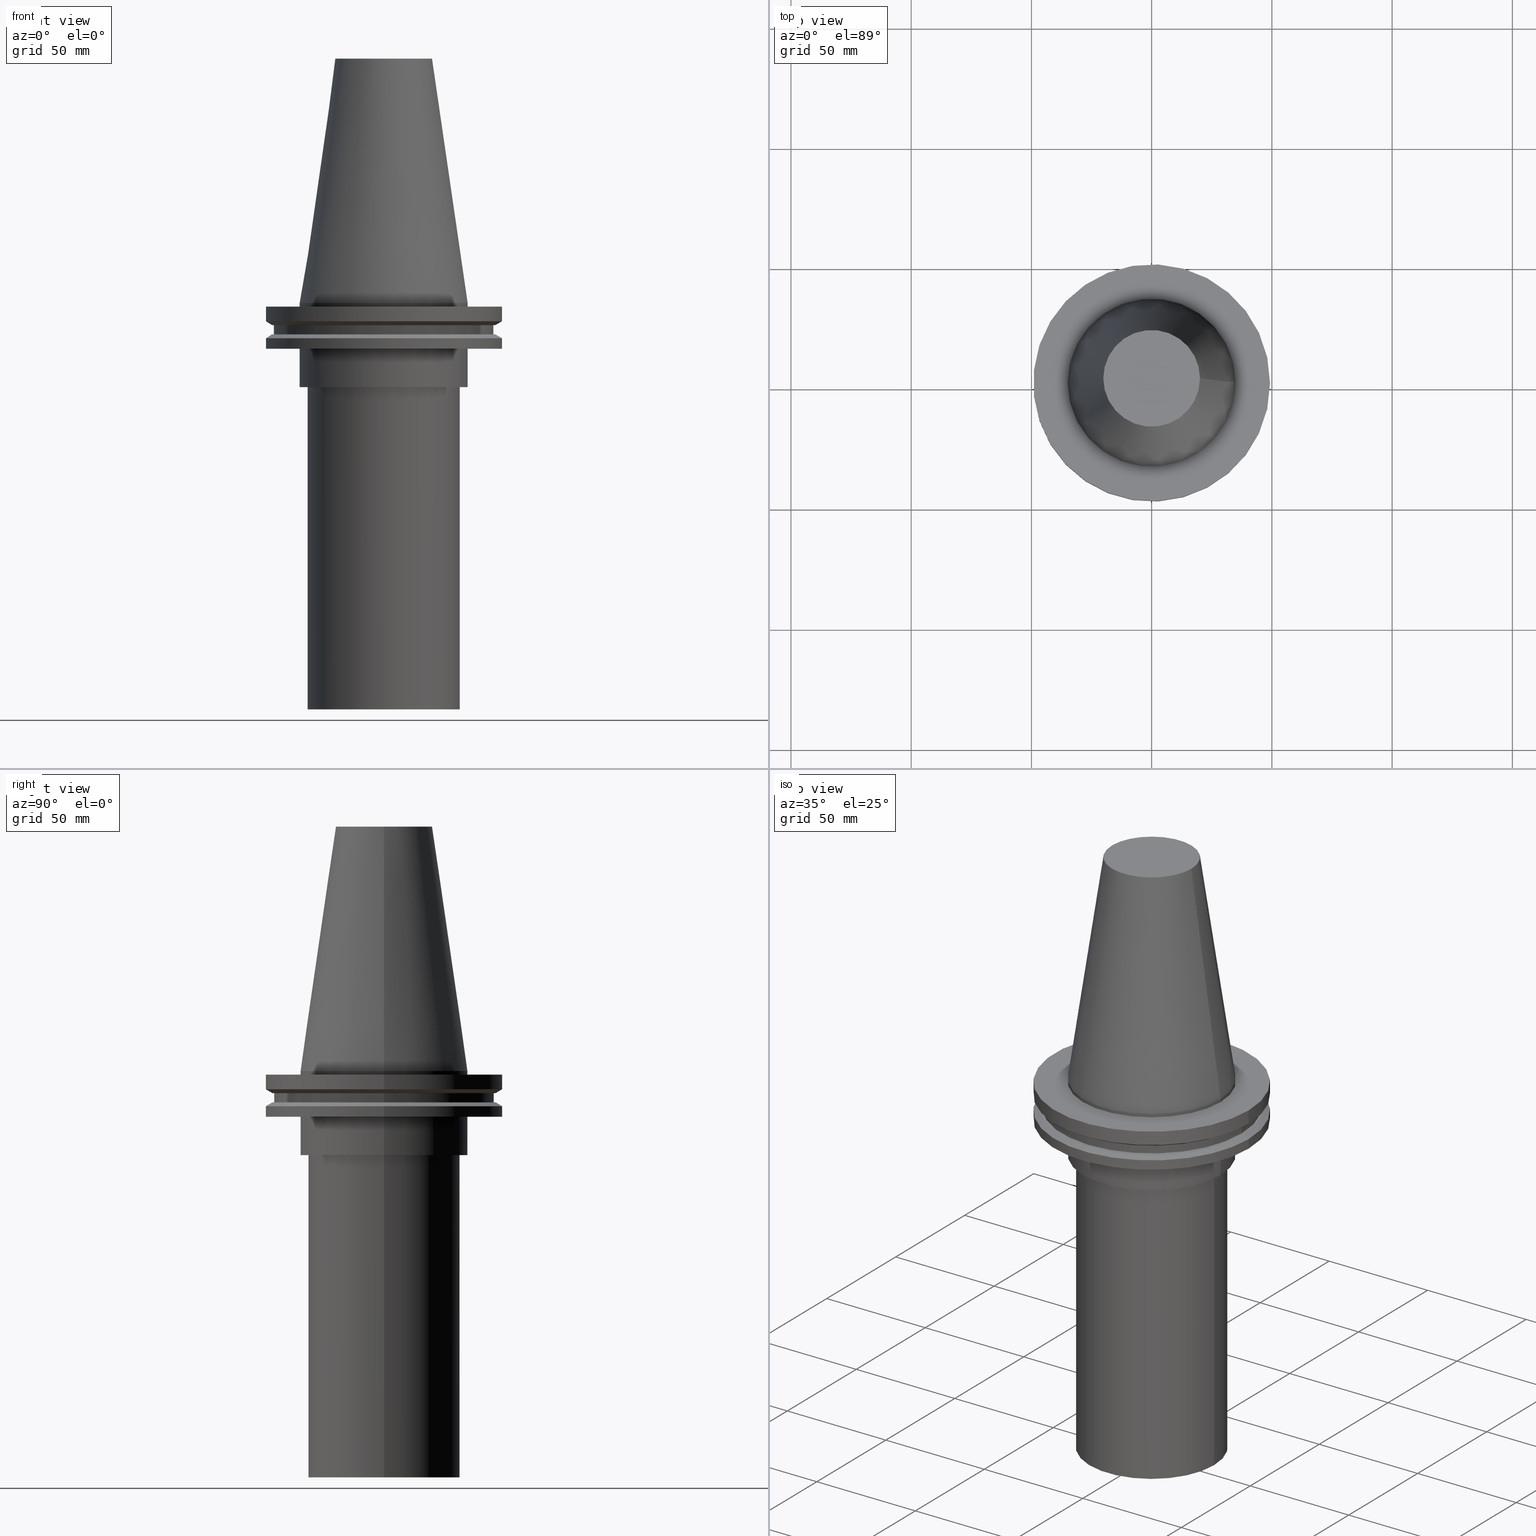
[diagram: canonical four-view strip — front | top / right | iso, engineering-drawing reading convention]
A machine part, canonical four-view strip (front | top / right | iso — engineering-drawing reading convention). The complete STEP part file that produces these views, byte-faithful:
ISO-10303-21;
HEADER;
FILE_DESCRIPTION (( 'STEP AP203' ),
    '1' );
FILE_NAME ('11.326.665.stp',
    '2022-03-09T14:53:39',
    ( '' ),
    ( '' ),
    'SwSTEP 2.0',
    'SolidWorks 2021',
    '' );
FILE_SCHEMA (( 'CONFIG_CONTROL_DESIGN' ));
ENDSEC;

DATA;
#1 = CARTESIAN_POINT ( 'NONE',  ( 34.92499999999999716, 0.000000000000000000, -19.04999999999999716 ) ) ;
#2 = EDGE_CURVE ( 'NONE', #276, #276, #79, .T. ) ;
#3 = VERTEX_POINT ( 'NONE', #122 ) ;
#4 = DIRECTION ( 'NONE',  ( 0.000000000000000000, 0.000000000000000000, -1.000000000000000000 ) ) ;
#5 = CARTESIAN_POINT ( 'NONE',  ( 0.000000000000000000, 0.000000000000000000, -168.9999999999999432 ) ) ;
#6 = LOCAL_TIME ( 8, 53, 39.00000000000000000, #308 ) ;
#7 = AXIS2_PLACEMENT_3D ( 'NONE', #236, #206, #326 ) ;
#8 = VERTEX_POINT ( 'NONE', #126 ) ;
#9 = CALENDAR_DATE ( 2022, 9, 3 ) ;
#10 = AXIS2_PLACEMENT_3D ( 'NONE', #107, #386, #356 ) ;
#11 = MECHANICAL_CONTEXT ( 'NONE', #37, 'mechanical' ) ;
#12 = ORIENTED_EDGE ( 'NONE', *, *, #245, .F. ) ;
#13 = PRODUCT_DEFINITION_SHAPE ( 'NONE', 'NONE',  #361 ) ;
#14 = AXIS2_PLACEMENT_3D ( 'NONE', #367, #85, #250 ) ;
#15 = CC_DESIGN_PERSON_AND_ORGANIZATION_ASSIGNMENT ( #195, #389, ( #288 ) ) ;
#16 = PLANE ( 'NONE',  #90 ) ;
#17 = EDGE_LOOP ( 'NONE', ( #110 ) ) ;
#18 = EDGE_LOOP ( 'NONE', ( #329 ) ) ;
#19 = ORIENTED_EDGE ( 'NONE', *, *, #199, .T. ) ;
#20 = APPROVAL_PERSON_ORGANIZATION ( #223, #222, #194 ) ;
#21 = EDGE_LOOP ( 'NONE', ( #319 ) ) ;
#22 = DATE_AND_TIME ( #50, #83 ) ;
#23 = CARTESIAN_POINT ( 'NONE',  ( 0.000000000000000000, 0.000000000000000000, -19.04999999999999716 ) ) ;
#24 = DIRECTION ( 'NONE',  ( 1.000000000000000000, 0.000000000000000000, 0.000000000000000000 ) ) ;
#25 = FACE_OUTER_BOUND ( 'NONE', #196, .T. ) ;
#26 = APPROVAL_STATUS ( 'not_yet_approved' ) ;
#27 = FACE_OUTER_BOUND ( 'NONE', #229, .T. ) ;
#28 = FACE_OUTER_BOUND ( 'NONE', #147, .T. ) ;
#29 = CIRCLE ( 'NONE', #330, 46.43919780457007818 ) ;
#30 = AXIS2_PLACEMENT_3D ( 'NONE', #247, #299, #274 ) ;
#31 = DIRECTION ( 'NONE',  ( 1.000000000000000000, 0.000000000000000000, 0.000000000000000000 ) ) ;
#32 = EDGE_CURVE ( 'NONE', #121, #121, #102, .T. ) ;
#33 = FACE_OUTER_BOUND ( 'NONE', #82, .T. ) ;
#34 = AXIS2_PLACEMENT_3D ( 'NONE', #322, #290, #320 ) ;
#35 = CARTESIAN_POINT ( 'NONE',  ( 0.000000000000000000, 0.000000000000000000, -14.65761014474876944 ) ) ;
#36 = PERSON_AND_ORGANIZATION ( #134, #162 ) ;
#37 = APPLICATION_CONTEXT ( 'configuration controlled 3d designs of mechanical parts and assemblies' ) ;
#38 = AXIS2_PLACEMENT_3D ( 'NONE', #23, #89, #279 ) ;
#39 = APPROVAL_DATE_TIME ( #192, #252 ) ;
#40 = DIRECTION ( 'NONE',  ( 0.000000000000000000, 0.000000000000000000, 1.000000000000000000 ) ) ;
#41 = DIRECTION ( 'NONE',  ( 1.000000000000000000, 0.000000000000000000, 0.000000000000000000 ) ) ;
#42 = ORIENTED_EDGE ( 'NONE', *, *, #277, .F. ) ;
#43 = DIRECTION ( 'NONE',  ( 0.000000000000000000, -0.000000000000000000, 1.000000000000000000 ) ) ;
#44 = ORIENTED_EDGE ( 'NONE', *, *, #99, .T. ) ;
#45 = DIRECTION ( 'NONE',  ( -0.000000000000000000, -0.000000000000000000, 1.000000000000000000 ) ) ;
#46 = CARTESIAN_POINT ( 'NONE',  ( 0.000000000000000000, 0.000000000000000000, 0.000000000000000000 ) ) ;
#47 = PLANE ( 'NONE',  #211 ) ;
#48 = ADVANCED_FACE ( 'NONE', ( #51, #181 ), #152, .T. ) ;
#49 = DIRECTION ( 'NONE',  ( 1.000000000000000000, 0.000000000000000000, 0.000000000000000000 ) ) ;
#50 = CALENDAR_DATE ( 2022, 9, 3 ) ;
#51 = FACE_OUTER_BOUND ( 'NONE', #383, .T. ) ;
#52 = PLANE ( 'NONE',  #306 ) ;
#53 = DIRECTION ( 'NONE',  ( -0.000000000000000000, -0.000000000000000000, 1.000000000000000000 ) ) ;
#54 = EDGE_CURVE ( 'NONE', #159, #159, #373, .T. ) ;
#55 = CARTESIAN_POINT ( 'NONE',  ( 49.21499999999998920, 0.000000000000000000, -14.65761014474876944 ) ) ;
#56 = AXIS2_PLACEMENT_3D ( 'NONE', #289, #321, #111 ) ;
#57 = FACE_BOUND ( 'NONE', #292, .T. ) ;
#58 = DIRECTION ( 'NONE',  ( 1.000000000000000000, 0.000000000000000000, 0.000000000000000000 ) ) ;
#59 = LOCAL_TIME ( 8, 53, 39.00000000000000000, #343 ) ;
#60 = ADVANCED_FACE ( 'NONE', ( #327, #179 ), #94, .T. ) ;
#61 = CALENDAR_DATE ( 2022, 9, 3 ) ;
#62 = CARTESIAN_POINT ( 'NONE',  ( 0.000000000000000000, 0.000000000000000000, -1.499999999999987566 ) ) ;
#63 = ADVANCED_FACE ( 'NONE', ( #303, #28 ), #238, .T. ) ;
#64 = CARTESIAN_POINT ( 'NONE',  ( 46.43919780457007818, 0.000000000000000000, -9.204999999999991189 ) ) ;
#65 = DIRECTION ( 'NONE',  ( -0.000000000000000000, -0.000000000000000000, 1.000000000000000000 ) ) ;
#66 = LOCAL_TIME ( 8, 53, 39.00000000000000000, #272 ) ;
#67 = DATE_AND_TIME ( #246, #118 ) ;
#68 = DIRECTION ( 'NONE',  ( -1.000000000000000000, 0.000000000000000000, -0.000000000000000000 ) ) ;
#69 = EDGE_LOOP ( 'NONE', ( #345 ) ) ;
#70 = APPLICATION_CONTEXT ( 'configuration controlled 3d designs of mechanical parts and assemblies' ) ;
#71 = DIRECTION ( 'NONE',  ( 1.000000000000000000, 0.000000000000000000, 0.000000000000000000 ) ) ;
#72 = EDGE_LOOP ( 'NONE', ( #316 ) ) ;
#73 = DIRECTION ( 'NONE',  ( 0.000000000000000000, 0.000000000000000000, -1.000000000000000000 ) ) ;
#74 = ORIENTED_EDGE ( 'NONE', *, *, #248, .F. ) ;
#75 = ADVANCED_BREP_SHAPE_REPRESENTATION ( '11.326.665', ( #387, #88 ), #137 ) ;
#76 = AXIS2_PLACEMENT_3D ( 'NONE', #183, #336, #390 ) ;
#77 = CYLINDRICAL_SURFACE ( 'NONE', #7, 45.64500000000000313 ) ;
#78 = EDGE_LOOP ( 'NONE', ( #357 ) ) ;
#79 = CIRCLE ( 'NONE', #34, 34.92499999999999716 ) ;
#80 = ADVANCED_FACE ( 'NONE', ( #216, #87 ), #280, .T. ) ;
#81 = FACE_OUTER_BOUND ( 'NONE', #205, .T. ) ;
#82 = EDGE_LOOP ( 'NONE', ( #164 ) ) ;
#83 = LOCAL_TIME ( 8, 53, 39.00000000000000000, #295 ) ;
#84 = CYLINDRICAL_SURFACE ( 'NONE', #264, 49.21499999999999631 ) ;
#85 = DIRECTION ( 'NONE',  ( 0.000000000000000000, 0.000000000000000000, -1.000000000000000000 ) ) ;
#86 = FACE_OUTER_BOUND ( 'NONE', #116, .T. ) ;
#87 = FACE_OUTER_BOUND ( 'NONE', #220, .T. ) ;
#88 = AXIS2_PLACEMENT_3D ( 'NONE', #165, #40, #338 ) ;
#89 = DIRECTION ( 'NONE',  ( -0.000000000000000000, -0.000000000000000000, 1.000000000000000000 ) ) ;
#90 = AXIS2_PLACEMENT_3D ( 'NONE', #139, #43, #173 ) ;
#91 = DIRECTION ( 'NONE',  ( 1.000000000000000000, 0.000000000000000000, 0.000000000000000000 ) ) ;
#92 = CARTESIAN_POINT ( 'NONE',  ( 0.000000000000000000, 0.000000000000000000, 101.5999999999999943 ) ) ;
#93 = CC_DESIGN_PERSON_AND_ORGANIZATION_ASSIGNMENT ( #131, #255, ( #231 ) ) ;
#94 = CONICAL_SURFACE ( 'NONE', #184, 34.92499999999999005, 0.1448138465474119452 ) ;
#95 = CARTESIAN_POINT ( 'NONE',  ( 49.21499999999998920, 0.000000000000000000, -19.04999999999999716 ) ) ;
#96 = VERTEX_POINT ( 'NONE', #282 ) ;
#97 = ORIENTED_EDGE ( 'NONE', *, *, #161, .T. ) ;
#98 = CARTESIAN_POINT ( 'NONE',  ( 49.21499999999999631, 0.000000000000000000, -1.499999999999987566 ) ) ;
#99 = EDGE_CURVE ( 'NONE', #3, #3, #244, .T. ) ;
#100 = EDGE_CURVE ( 'NONE', #249, #249, #260, .T. ) ;
#101 = DATE_TIME_ROLE ( 'creation_date' ) ;
#102 = CIRCLE ( 'NONE', #269, 49.21499999999998920 ) ;
#103 = ORIENTED_EDGE ( 'NONE', *, *, #199, .F. ) ;
#104 = VERTEX_POINT ( 'NONE', #219 ) ;
#105 = CC_DESIGN_APPROVAL ( #222, ( #288 ) ) ;
#106 = AXIS2_PLACEMENT_3D ( 'NONE', #92, #286, #41 ) ;
#107 = CARTESIAN_POINT ( 'NONE',  ( 0.000000000000000000, 0.000000000000000000, 101.5999999999999943 ) ) ;
#108 = CARTESIAN_POINT ( 'NONE',  ( 0.000000000000000000, 0.000000000000000000, -9.204999999999991189 ) ) ;
#109 = ORIENTED_EDGE ( 'NONE', *, *, #161, .F. ) ;
#110 = ORIENTED_EDGE ( 'NONE', *, *, #369, .F. ) ;
#111 = DIRECTION ( 'NONE',  ( 1.000000000000000000, 0.000000000000000000, 0.000000000000000000 ) ) ;
#112 = CARTESIAN_POINT ( 'NONE',  ( 0.000000000000000000, 0.000000000000000000, -13.05499999999999794 ) ) ;
#113 = EDGE_LOOP ( 'NONE', ( #109 ) ) ;
#114 = CALENDAR_DATE ( 2022, 9, 3 ) ;
#115 = DIRECTION ( 'NONE',  ( 0.000000000000000000, -0.000000000000000000, 1.000000000000000000 ) ) ;
#116 = EDGE_LOOP ( 'NONE', ( #350 ) ) ;
#117 = SHAPE_DEFINITION_REPRESENTATION ( #13, #75 ) ;
#118 = LOCAL_TIME ( 8, 53, 39.00000000000000000, #209 ) ;
#119 = PLANE ( 'NONE',  #14 ) ;
#120 = DATE_AND_TIME ( #114, #66 ) ;
#121 = VERTEX_POINT ( 'NONE', #55 ) ;
#122 = CARTESIAN_POINT ( 'NONE',  ( 34.92499999999999005, 0.000000000000000000, -1.499999999999987566 ) ) ;
#123 = CC_DESIGN_SECURITY_CLASSIFICATION ( #339, ( #288 ) ) ;
#124 = DIRECTION ( 'NONE',  ( 1.000000000000000000, 0.000000000000000000, 0.000000000000000000 ) ) ;
#125 = CIRCLE ( 'NONE', #230, 45.64500000000000313 ) ;
#126 = CARTESIAN_POINT ( 'NONE',  ( 49.21500000000000341, 0.000000000000000000, -7.602389855251287187 ) ) ;
#127 = CARTESIAN_POINT ( 'NONE',  ( 0.000000000000000000, 0.000000000000000000, -9.204999999999991189 ) ) ;
#128 = CARTESIAN_POINT ( 'NONE',  ( 34.92499999999999716, 0.000000000000000000, -35.00000000000000000 ) ) ;
#129 = EDGE_CURVE ( 'NONE', #281, #281, #29, .T. ) ;
#130 = EDGE_LOOP ( 'NONE', ( #348 ) ) ;
#131 = PERSON_AND_ORGANIZATION ( #134, #162 ) ;
#132 = ADVANCED_FACE ( 'NONE', ( #145 ), #149, .F. ) ;
#133 = DATE_AND_TIME ( #9, #6 ) ;
#134 = PERSON ( 'UNSPECIFIED', 'UNSPECIFIED', 'UNSPECIFIED', ('UNSPECIFIED'), ('UNSPECIFIED'), ('UNSPECIFIED') ) ;
#135 = CARTESIAN_POINT ( 'NONE',  ( 20.10819343178871321, 0.000000000000000000, 101.5999999999999801 ) ) ;
#136 = CARTESIAN_POINT ( 'NONE',  ( 0.000000000000000000, 20.10819343178871321, 101.5999999999999943 ) ) ;
#137 =( GEOMETRIC_REPRESENTATION_CONTEXT ( 3 ) GLOBAL_UNCERTAINTY_ASSIGNED_CONTEXT ( ( #158 ) ) GLOBAL_UNIT_ASSIGNED_CONTEXT ( ( #251, #312, #228 ) ) REPRESENTATION_CONTEXT ( 'NONE', 'WORKASPACE' ) );
#138 = AXIS2_PLACEMENT_3D ( 'NONE', #136, #73, #68 ) ;
#139 = CARTESIAN_POINT ( 'NONE',  ( 0.000000000000000000, 49.21499999999998920, -19.04999999999999716 ) ) ;
#140 = EDGE_LOOP ( 'NONE', ( #388 ) ) ;
#141 = FACE_BOUND ( 'NONE', #240, .T. ) ;
#142 = ADVANCED_FACE ( 'NONE', ( #81, #265 ), #200, .T. ) ;
#143 = CC_DESIGN_PERSON_AND_ORGANIZATION_ASSIGNMENT ( #332, #301, ( #339 ) ) ;
#144 = ORIENTED_EDGE ( 'NONE', *, *, #369, .T. ) ;
#145 = FACE_OUTER_BOUND ( 'NONE', #379, .T. ) ;
#146 = CONICAL_SURFACE ( 'NONE', #358, 46.43919780457007818, 1.047197551196575205 ) ;
#147 = EDGE_LOOP ( 'NONE', ( #266 ) ) ;
#148 = ADVANCED_FACE ( 'NONE', ( #384 ), #239, .F. ) ;
#149 = PLANE ( 'NONE',  #138 ) ;
#150 = ORIENTED_EDGE ( 'NONE', *, *, #283, .T. ) ;
#151 = DIRECTION ( 'NONE',  ( 1.000000000000000000, 0.000000000000000000, 0.000000000000000000 ) ) ;
#152 = CYLINDRICAL_SURFACE ( 'NONE', #324, 31.63500000000000512 ) ;
#153 = SECURITY_CLASSIFICATION_LEVEL ( 'unclassified' ) ;
#154 = FACE_BOUND ( 'NONE', #21, .T. ) ;
#155 = DIRECTION ( 'NONE',  ( -1.000000000000000000, 0.000000000000000000, 0.000000000000000000 ) ) ;
#156 = AXIS2_PLACEMENT_3D ( 'NONE', #305, #363, #31 ) ;
#157 = FACE_OUTER_BOUND ( 'NONE', #298, .T. ) ;
#158 = UNCERTAINTY_MEASURE_WITH_UNIT (LENGTH_MEASURE( 1.000000000000000082E-05 ), #251, 'distance_accuracy_value', 'NONE');
#159 = VERTEX_POINT ( 'NONE', #278 ) ;
#160 = PLANE ( 'NONE',  #365 ) ;
#161 = EDGE_CURVE ( 'NONE', #253, #253, #163, .T. ) ;
#162 = ORGANIZATION ( 'UNSPECIFIED', 'UNSPECIFIED', '' ) ;
#163 = CIRCLE ( 'NONE', #56, 20.10819343178871321 ) ;
#164 = ORIENTED_EDGE ( 'NONE', *, *, #258, .F. ) ;
#165 = CARTESIAN_POINT ( 'NONE',  ( 0.000000000000000000, 0.000000000000000000, 0.000000000000000000 ) ) ;
#166 = DIRECTION ( 'NONE',  ( 1.000000000000000000, 0.000000000000000000, 0.000000000000000000 ) ) ;
#167 = PERSON_AND_ORGANIZATION_ROLE ( 'creator' ) ;
#168 = DIRECTION ( 'NONE',  ( -0.000000000000000000, -0.000000000000000000, 1.000000000000000000 ) ) ;
#169 = VERTEX_POINT ( 'NONE', #98 ) ;
#170 = EDGE_CURVE ( 'NONE', #8, #8, #284, .T. ) ;
#171 = DIRECTION ( 'NONE',  ( 1.000000000000000000, 0.000000000000000000, 0.000000000000000000 ) ) ;
#172 = AXIS2_PLACEMENT_3D ( 'NONE', #307, #213, #334 ) ;
#173 = DIRECTION ( 'NONE',  ( 1.000000000000000000, 0.000000000000000000, 0.000000000000000000 ) ) ;
#174 = DIRECTION ( 'NONE',  ( -0.000000000000000000, -0.000000000000000000, 1.000000000000000000 ) ) ;
#175 = ADVANCED_FACE ( 'NONE', ( #351, #347 ), #16, .F. ) ;
#176 = DIRECTION ( 'NONE',  ( -0.000000000000000000, -0.000000000000000000, 1.000000000000000000 ) ) ;
#177 = CARTESIAN_POINT ( 'NONE',  ( 0.000000000000000000, 49.21499999999999631, -1.499999999999992895 ) ) ;
#178 = AXIS2_PLACEMENT_3D ( 'NONE', #333, #53, #91 ) ;
#179 = FACE_OUTER_BOUND ( 'NONE', #261, .T. ) ;
#180 = PERSON_AND_ORGANIZATION ( #134, #162 ) ;
#181 = FACE_OUTER_BOUND ( 'NONE', #234, .T. ) ;
#182 = CC_DESIGN_PERSON_AND_ORGANIZATION_ASSIGNMENT ( #191, #167, ( #361 ) ) ;
#183 = CARTESIAN_POINT ( 'NONE',  ( 0.000000000000000000, 0.000000000000000000, -1.499999999999987566 ) ) ;
#184 = AXIS2_PLACEMENT_3D ( 'NONE', #294, #4, #155 ) ;
#185 = CARTESIAN_POINT ( 'NONE',  ( 0.000000000000000000, 0.000000000000000000, 101.5999999999999943 ) ) ;
#186 = CARTESIAN_POINT ( 'NONE',  ( 0.000000000000000000, 0.000000000000000000, -9.204999999999991189 ) ) ;
#187 = DIRECTION ( 'NONE',  ( -0.000000000000000000, -0.000000000000000000, 1.000000000000000000 ) ) ;
#188 = ADVANCED_FACE ( 'NONE', ( #233, #380 ), #77, .T. ) ;
#189 = CIRCLE ( 'NONE', #172, 31.63500000000000512 ) ;
#190 = DESIGN_CONTEXT ( 'detailed design', #70, 'design' ) ;
#191 = PERSON_AND_ORGANIZATION ( #134, #162 ) ;
#192 = DATE_AND_TIME ( #61, #59 ) ;
#193 = CC_DESIGN_APPROVAL ( #252, ( #361 ) ) ;
#194 = APPROVAL_ROLE ( '' ) ;
#195 = PERSON_AND_ORGANIZATION ( #134, #162 ) ;
#196 = EDGE_LOOP ( 'NONE', ( #235 ) ) ;
#197 = PRODUCT_RELATED_PRODUCT_CATEGORY ( 'detail', '', ( #231 ) ) ;
#198 = ORIENTED_EDGE ( 'NONE', *, *, #248, .T. ) ;
#199 = EDGE_CURVE ( 'NONE', #259, #259, #125, .T. ) ;
#200 = CYLINDRICAL_SURFACE ( 'NONE', #10, 34.92499999999999005 ) ;
#201 = CIRCLE ( 'NONE', #178, 45.64500000000000313 ) ;
#202 = ORIENTED_EDGE ( 'NONE', *, *, #170, .F. ) ;
#203 = CIRCLE ( 'NONE', #30, 34.92499999999999005 ) ;
#204 = DIRECTION ( 'NONE',  ( 0.000000000000000000, -0.000000000000000000, 1.000000000000000000 ) ) ;
#205 = EDGE_LOOP ( 'NONE', ( #74 ) ) ;
#206 = DIRECTION ( 'NONE',  ( -0.000000000000000000, -0.000000000000000000, 1.000000000000000000 ) ) ;
#207 = DIRECTION ( 'NONE',  ( -0.000000000000000000, -0.000000000000000000, 1.000000000000000000 ) ) ;
#208 = ORIENTED_EDGE ( 'NONE', *, *, #99, .F. ) ;
#209 = COORDINATED_UNIVERSAL_TIME_OFFSET ( 6, 0, .BEHIND. ) ;
#210 = FACE_OUTER_BOUND ( 'NONE', #130, .T. ) ;
#211 = AXIS2_PLACEMENT_3D ( 'NONE', #177, #270, #217 ) ;
#212 = FACE_BOUND ( 'NONE', #69, .T. ) ;
#213 = DIRECTION ( 'NONE',  ( -0.000000000000000000, -0.000000000000000000, 1.000000000000000000 ) ) ;
#214 = ADVANCED_FACE ( 'NONE', ( #141, #262 ), #47, .F. ) ;
#215 = CARTESIAN_POINT ( 'NONE',  ( 0.000000000000000000, 34.92499999999999716, -35.00000000000000000 ) ) ;
#216 = FACE_OUTER_BOUND ( 'NONE', #18, .T. ) ;
#217 = DIRECTION ( 'NONE',  ( -1.000000000000000000, 0.000000000000000000, -0.000000000000000000 ) ) ;
#218 = APPROVAL_ROLE ( '' ) ;
#219 = CARTESIAN_POINT ( 'NONE',  ( 34.92499999999999005, 0.000000000000000000, 0.000000000000000000 ) ) ;
#220 = EDGE_LOOP ( 'NONE', ( #150 ) ) ;
#221 = VERTEX_POINT ( 'NONE', #314 ) ;
#222 = APPROVAL ( #344, 'UNSPECIFIED' ) ;
#223 = PERSON_AND_ORGANIZATION ( #134, #162 ) ;
#224 = ADVANCED_FACE ( 'NONE', ( #86, #57 ), #52, .F. ) ;
#225 = CARTESIAN_POINT ( 'NONE',  ( 0.000000000000000000, 0.000000000000000000, -35.00000000000000000 ) ) ;
#226 = EDGE_LOOP ( 'NONE', ( #44 ) ) ;
#227 = CC_DESIGN_APPROVAL ( #371, ( #339 ) ) ;
#228 =( NAMED_UNIT ( * ) SI_UNIT ( $, .STERADIAN. ) SOLID_ANGLE_UNIT ( ) );
#229 = EDGE_LOOP ( 'NONE', ( #372 ) ) ;
#230 = AXIS2_PLACEMENT_3D ( 'NONE', #108, #349, #71 ) ;
#231 = PRODUCT ( '11.326.665', '11.326.665', '', ( #11 ) ) ;
#232 = CARTESIAN_POINT ( 'NONE',  ( 0.000000000000000000, 31.63500000000000512, -168.9999999999999432 ) ) ;
#233 = FACE_OUTER_BOUND ( 'NONE', #287, .T. ) ;
#234 = EDGE_LOOP ( 'NONE', ( #271 ) ) ;
#235 = ORIENTED_EDGE ( 'NONE', *, *, #170, .T. ) ;
#236 = CARTESIAN_POINT ( 'NONE',  ( 0.000000000000000000, 0.000000000000000000, 101.5999999999999943 ) ) ;
#237 = EDGE_LOOP ( 'NONE', ( #352 ) ) ;
#238 = CONICAL_SURFACE ( 'NONE', #309, 49.21499999999998920, 1.047197551196554333 ) ;
#239 = PLANE ( 'NONE',  #304 ) ;
#240 = EDGE_LOOP ( 'NONE', ( #208 ) ) ;
#241 = FACE_BOUND ( 'NONE', #17, .T. ) ;
#242 = APPROVAL_DATE_TIME ( #22, #371 ) ;
#243 = DIRECTION ( 'NONE',  ( 0.000000000000000000, -0.000000000000000000, 1.000000000000000000 ) ) ;
#244 = CIRCLE ( 'NONE', #366, 34.92499999999999005 ) ;
#245 = EDGE_CURVE ( 'NONE', #96, #96, #341, .T. ) ;
#246 = CALENDAR_DATE ( 2022, 9, 3 ) ;
#247 = CARTESIAN_POINT ( 'NONE',  ( 0.000000000000000000, 0.000000000000000000, 0.000000000000000000 ) ) ;
#248 = EDGE_CURVE ( 'NONE', #104, #104, #203, .T. ) ;
#249 = VERTEX_POINT ( 'NONE', #128 ) ;
#250 = DIRECTION ( 'NONE',  ( -1.000000000000000000, 0.000000000000000000, -0.000000000000000000 ) ) ;
#251 =( LENGTH_UNIT ( ) NAMED_UNIT ( * ) SI_UNIT ( .MILLI., .METRE. ) );
#252 = APPROVAL ( #370, 'UNSPECIFIED' ) ;
#253 = VERTEX_POINT ( 'NONE', #135 ) ;
#254 = DIRECTION ( 'NONE',  ( 1.000000000000000000, 0.000000000000000000, 0.000000000000000000 ) ) ;
#255 = PERSON_AND_ORGANIZATION_ROLE ( 'design_owner' ) ;
#256 = CIRCLE ( 'NONE', #76, 49.21499999999999631 ) ;
#257 = VERTEX_POINT ( 'NONE', #95 ) ;
#258 = EDGE_CURVE ( 'NONE', #169, #169, #256, .T. ) ;
#259 = VERTEX_POINT ( 'NONE', #368 ) ;
#260 = CIRCLE ( 'NONE', #378, 34.92499999999999716 ) ;
#261 = EDGE_LOOP ( 'NONE', ( #198 ) ) ;
#262 = FACE_OUTER_BOUND ( 'NONE', #346, .T. ) ;
#263 = CARTESIAN_POINT ( 'NONE',  ( 0.000000000000000000, 0.000000000000000000, -14.65761014474876944 ) ) ;
#264 = AXIS2_PLACEMENT_3D ( 'NONE', #185, #337, #151 ) ;
#265 = FACE_OUTER_BOUND ( 'NONE', #226, .T. ) ;
#266 = ORIENTED_EDGE ( 'NONE', *, *, #32, .T. ) ;
#267 = DATE_TIME_ROLE ( 'classification_date' ) ;
#268 = EDGE_LOOP ( 'NONE', ( #144 ) ) ;
#269 = AXIS2_PLACEMENT_3D ( 'NONE', #263, #174, #24 ) ;
#270 = DIRECTION ( 'NONE',  ( 0.000000000000000000, 0.000000000000000000, -1.000000000000000000 ) ) ;
#271 = ORIENTED_EDGE ( 'NONE', *, *, #245, .T. ) ;
#272 = COORDINATED_UNIVERSAL_TIME_OFFSET ( 6, 0, .BEHIND. ) ;
#273 = CC_DESIGN_PERSON_AND_ORGANIZATION_ASSIGNMENT ( #180, #376, ( #288 ) ) ;
#274 = DIRECTION ( 'NONE',  ( 1.000000000000000000, 0.000000000000000000, 0.000000000000000000 ) ) ;
#275 = APPROVAL_PERSON_ORGANIZATION ( #36, #252, #218 ) ;
#276 = VERTEX_POINT ( 'NONE', #1 ) ;
#277 = EDGE_CURVE ( 'NONE', #315, #315, #189, .T. ) ;
#278 = CARTESIAN_POINT ( 'NONE',  ( 46.43919780457007818, 0.000000000000000000, -13.05499999999999794 ) ) ;
#279 = DIRECTION ( 'NONE',  ( 1.000000000000000000, 0.000000000000000000, 0.000000000000000000 ) ) ;
#280 = CYLINDRICAL_SURFACE ( 'NONE', #106, 49.21499999999998920 ) ;
#281 = VERTEX_POINT ( 'NONE', #64 ) ;
#282 = CARTESIAN_POINT ( 'NONE',  ( 31.63500000000000512, 0.000000000000000000, -168.9999999999999432 ) ) ;
#283 = EDGE_CURVE ( 'NONE', #257, #257, #293, .T. ) ;
#284 = CIRCLE ( 'NONE', #296, 49.21500000000000341 ) ;
#285 = APPLICATION_PROTOCOL_DEFINITION ( 'international standard', 'config_control_design', 1994, #37 ) ;
#286 = DIRECTION ( 'NONE',  ( -0.000000000000000000, -0.000000000000000000, 1.000000000000000000 ) ) ;
#287 = EDGE_LOOP ( 'NONE', ( #103 ) ) ;
#288 = PRODUCT_DEFINITION_FORMATION_WITH_SPECIFIED_SOURCE ( 'ANY', '', #231, .NOT_KNOWN. ) ;
#289 = CARTESIAN_POINT ( 'NONE',  ( 0.000000000000000000, 0.000000000000000000, 101.5999999999999801 ) ) ;
#290 = DIRECTION ( 'NONE',  ( -0.000000000000000000, -0.000000000000000000, 1.000000000000000000 ) ) ;
#291 = ORIENTED_EDGE ( 'NONE', *, *, #258, .T. ) ;
#292 = EDGE_LOOP ( 'NONE', ( #19 ) ) ;
#293 = CIRCLE ( 'NONE', #38, 49.21499999999998920 ) ;
#294 = CARTESIAN_POINT ( 'NONE',  ( 0.000000000000000000, 0.000000000000000000, 0.000000000000000000 ) ) ;
#295 = COORDINATED_UNIVERSAL_TIME_OFFSET ( 6, 0, .BEHIND. ) ;
#296 = AXIS2_PLACEMENT_3D ( 'NONE', #354, #45, #328 ) ;
#297 = DIRECTION ( 'NONE',  ( -0.000000000000000000, -0.000000000000000000, 1.000000000000000000 ) ) ;
#298 = EDGE_LOOP ( 'NONE', ( #391 ) ) ;
#299 = DIRECTION ( 'NONE',  ( -0.000000000000000000, -0.000000000000000000, 1.000000000000000000 ) ) ;
#300 = AXIS2_PLACEMENT_3D ( 'NONE', #112, #207, #49 ) ;
#301 = PERSON_AND_ORGANIZATION_ROLE ( 'classification_officer' ) ;
#302 = DIRECTION ( 'NONE',  ( 1.000000000000000000, 0.000000000000000000, 0.000000000000000000 ) ) ;
#303 = FACE_BOUND ( 'NONE', #140, .T. ) ;
#304 = AXIS2_PLACEMENT_3D ( 'NONE', #232, #204, #318 ) ;
#305 = CARTESIAN_POINT ( 'NONE',  ( 0.000000000000000000, 0.000000000000000000, 101.5999999999999943 ) ) ;
#306 = AXIS2_PLACEMENT_3D ( 'NONE', #359, #243, #362 ) ;
#307 = CARTESIAN_POINT ( 'NONE',  ( 0.000000000000000000, 0.000000000000000000, -35.00000000000000000 ) ) ;
#308 = COORDINATED_UNIVERSAL_TIME_OFFSET ( 6, 0, .BEHIND. ) ;
#309 = AXIS2_PLACEMENT_3D ( 'NONE', #35, #335, #360 ) ;
#310 = DIRECTION ( 'NONE',  ( -0.000000000000000000, -0.000000000000000000, 1.000000000000000000 ) ) ;
#311 = CC_DESIGN_DATE_AND_TIME_ASSIGNMENT ( #120, #267, ( #339 ) ) ;
#312 =( NAMED_UNIT ( * ) PLANE_ANGLE_UNIT ( ) SI_UNIT ( $, .RADIAN. ) );
#313 = ADVANCED_FACE ( 'NONE', ( #33, #25 ), #84, .T. ) ;
#314 = CARTESIAN_POINT ( 'NONE',  ( 45.64500000000000313, 0.000000000000000000, -13.05499999999999794 ) ) ;
#315 = VERTEX_POINT ( 'NONE', #340 ) ;
#316 = ORIENTED_EDGE ( 'NONE', *, *, #283, .F. ) ;
#317 = CLOSED_SHELL ( 'NONE', ( #60, #132, #325, #374, #175, #80, #63, #342, #188, #224, #353, #313, #214, #142, #48, #148 ) ) ;
#318 = DIRECTION ( 'NONE',  ( 1.000000000000000000, 0.000000000000000000, 0.000000000000000000 ) ) ;
#319 = ORIENTED_EDGE ( 'NONE', *, *, #277, .T. ) ;
#320 = DIRECTION ( 'NONE',  ( 1.000000000000000000, 0.000000000000000000, 0.000000000000000000 ) ) ;
#321 = DIRECTION ( 'NONE',  ( -0.000000000000000000, -0.000000000000000000, 1.000000000000000000 ) ) ;
#322 = CARTESIAN_POINT ( 'NONE',  ( 0.000000000000000000, 0.000000000000000000, -19.04999999999999716 ) ) ;
#323 = APPROVAL_ROLE ( '' ) ;
#324 = AXIS2_PLACEMENT_3D ( 'NONE', #46, #176, #385 ) ;
#325 = ADVANCED_FACE ( 'NONE', ( #154, #393 ), #160, .F. ) ;
#326 = DIRECTION ( 'NONE',  ( 1.000000000000000000, 0.000000000000000000, 0.000000000000000000 ) ) ;
#327 = FACE_BOUND ( 'NONE', #113, .T. ) ;
#328 = DIRECTION ( 'NONE',  ( 1.000000000000000000, 0.000000000000000000, 0.000000000000000000 ) ) ;
#329 = ORIENTED_EDGE ( 'NONE', *, *, #32, .F. ) ;
#330 = AXIS2_PLACEMENT_3D ( 'NONE', #127, #310, #254 ) ;
#331 = FACE_OUTER_BOUND ( 'NONE', #382, .T. ) ;
#332 = PERSON_AND_ORGANIZATION ( #134, #162 ) ;
#333 = CARTESIAN_POINT ( 'NONE',  ( 0.000000000000000000, 0.000000000000000000, -13.05499999999999794 ) ) ;
#334 = DIRECTION ( 'NONE',  ( 1.000000000000000000, 0.000000000000000000, 0.000000000000000000 ) ) ;
#335 = DIRECTION ( 'NONE',  ( 0.000000000000000000, 0.000000000000000000, -1.000000000000000000 ) ) ;
#336 = DIRECTION ( 'NONE',  ( -0.000000000000000000, -0.000000000000000000, 1.000000000000000000 ) ) ;
#337 = DIRECTION ( 'NONE',  ( -0.000000000000000000, -0.000000000000000000, 1.000000000000000000 ) ) ;
#338 = DIRECTION ( 'NONE',  ( 1.000000000000000000, 0.000000000000000000, 0.000000000000000000 ) ) ;
#339 = SECURITY_CLASSIFICATION ( '', '', #153 ) ;
#340 = CARTESIAN_POINT ( 'NONE',  ( 31.63500000000000512, 0.000000000000000000, -35.00000000000000000 ) ) ;
#341 = CIRCLE ( 'NONE', #395, 31.63500000000000512 ) ;
#342 = ADVANCED_FACE ( 'NONE', ( #241, #210 ), #119, .F. ) ;
#343 = COORDINATED_UNIVERSAL_TIME_OFFSET ( 6, 0, .BEHIND. ) ;
#344 = APPROVAL_STATUS ( 'not_yet_approved' ) ;
#345 = ORIENTED_EDGE ( 'NONE', *, *, #129, .T. ) ;
#346 = EDGE_LOOP ( 'NONE', ( #291 ) ) ;
#347 = FACE_BOUND ( 'NONE', #78, .T. ) ;
#348 = ORIENTED_EDGE ( 'NONE', *, *, #54, .T. ) ;
#349 = DIRECTION ( 'NONE',  ( -0.000000000000000000, -0.000000000000000000, 1.000000000000000000 ) ) ;
#350 = ORIENTED_EDGE ( 'NONE', *, *, #129, .F. ) ;
#351 = FACE_OUTER_BOUND ( 'NONE', #72, .T. ) ;
#352 = ORIENTED_EDGE ( 'NONE', *, *, #100, .F. ) ;
#353 = ADVANCED_FACE ( 'NONE', ( #331, #212 ), #146, .T. ) ;
#354 = CARTESIAN_POINT ( 'NONE',  ( 0.000000000000000000, 0.000000000000000000, -7.602389855251287187 ) ) ;
#355 = EDGE_LOOP ( 'NONE', ( #12 ) ) ;
#356 = DIRECTION ( 'NONE',  ( 1.000000000000000000, 0.000000000000000000, 0.000000000000000000 ) ) ;
#357 = ORIENTED_EDGE ( 'NONE', *, *, #2, .T. ) ;
#358 = AXIS2_PLACEMENT_3D ( 'NONE', #186, #297, #302 ) ;
#359 = CARTESIAN_POINT ( 'NONE',  ( 0.000000000000000000, 46.43919780457007818, -9.204999999999998295 ) ) ;
#360 = DIRECTION ( 'NONE',  ( -1.000000000000000000, 0.000000000000000000, 0.000000000000000000 ) ) ;
#361 = PRODUCT_DEFINITION ( 'UNKNOWN', '', #288, #190 ) ;
#362 = DIRECTION ( 'NONE',  ( 1.000000000000000000, 0.000000000000000000, 0.000000000000000000 ) ) ;
#363 = DIRECTION ( 'NONE',  ( -0.000000000000000000, -0.000000000000000000, 1.000000000000000000 ) ) ;
#364 = CYLINDRICAL_SURFACE ( 'NONE', #156, 34.92499999999999716 ) ;
#365 = AXIS2_PLACEMENT_3D ( 'NONE', #215, #115, #124 ) ;
#366 = AXIS2_PLACEMENT_3D ( 'NONE', #62, #168, #166 ) ;
#367 = CARTESIAN_POINT ( 'NONE',  ( 0.000000000000000000, 45.64500000000000313, -13.05499999999999794 ) ) ;
#368 = CARTESIAN_POINT ( 'NONE',  ( 45.64500000000000313, 0.000000000000000000, -9.204999999999991189 ) ) ;
#369 = EDGE_CURVE ( 'NONE', #221, #221, #201, .T. ) ;
#370 = APPROVAL_STATUS ( 'not_yet_approved' ) ;
#371 = APPROVAL ( #26, 'UNSPECIFIED' ) ;
#372 = ORIENTED_EDGE ( 'NONE', *, *, #2, .F. ) ;
#373 = CIRCLE ( 'NONE', #300, 46.43919780457007818 ) ;
#374 = ADVANCED_FACE ( 'NONE', ( #27, #157 ), #364, .T. ) ;
#375 = APPLICATION_PROTOCOL_DEFINITION ( 'international standard', 'config_control_design', 1994, #70 ) ;
#376 = PERSON_AND_ORGANIZATION_ROLE ( 'design_supplier' ) ;
#377 = APPROVAL_PERSON_ORGANIZATION ( #392, #371, #323 ) ;
#378 = AXIS2_PLACEMENT_3D ( 'NONE', #225, #65, #171 ) ;
#379 = EDGE_LOOP ( 'NONE', ( #97 ) ) ;
#380 = FACE_OUTER_BOUND ( 'NONE', #268, .T. ) ;
#381 = CC_DESIGN_DATE_AND_TIME_ASSIGNMENT ( #133, #101, ( #361 ) ) ;
#382 = EDGE_LOOP ( 'NONE', ( #202 ) ) ;
#383 = EDGE_LOOP ( 'NONE', ( #42 ) ) ;
#384 = FACE_OUTER_BOUND ( 'NONE', #355, .T. ) ;
#385 = DIRECTION ( 'NONE',  ( 1.000000000000000000, 0.000000000000000000, 0.000000000000000000 ) ) ;
#386 = DIRECTION ( 'NONE',  ( -0.000000000000000000, -0.000000000000000000, 1.000000000000000000 ) ) ;
#387 = MANIFOLD_SOLID_BREP ( 'CKB', #317 ) ;
#388 = ORIENTED_EDGE ( 'NONE', *, *, #54, .F. ) ;
#389 = PERSON_AND_ORGANIZATION_ROLE ( 'creator' ) ;
#390 = DIRECTION ( 'NONE',  ( 1.000000000000000000, 0.000000000000000000, 0.000000000000000000 ) ) ;
#391 = ORIENTED_EDGE ( 'NONE', *, *, #100, .T. ) ;
#392 = PERSON_AND_ORGANIZATION ( #134, #162 ) ;
#393 = FACE_OUTER_BOUND ( 'NONE', #237, .T. ) ;
#394 = APPROVAL_DATE_TIME ( #67, #222 ) ;
#395 = AXIS2_PLACEMENT_3D ( 'NONE', #5, #187, #58 ) ;
ENDSEC;
END-ISO-10303-21;
